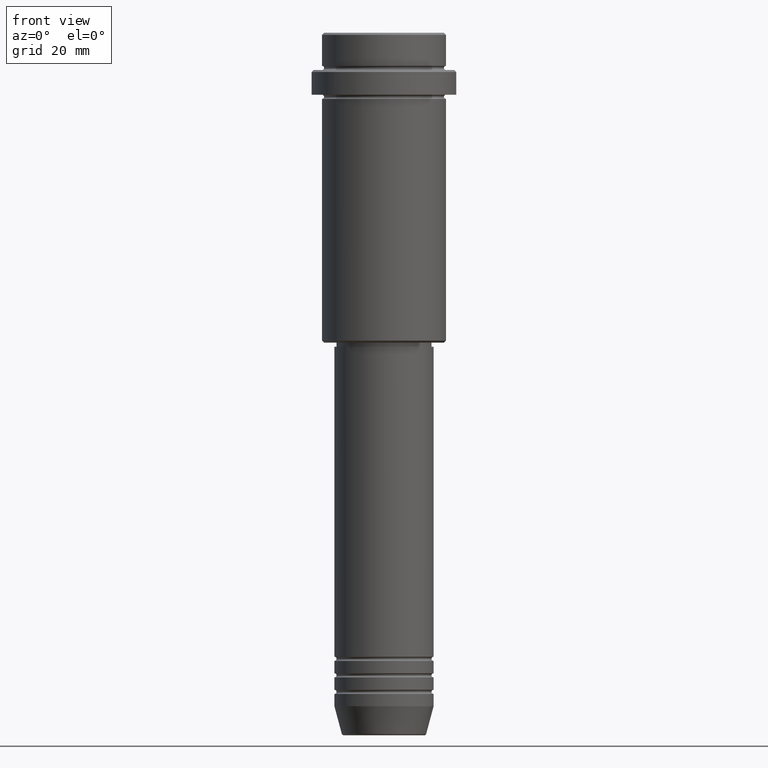
[diagram: clean part render]
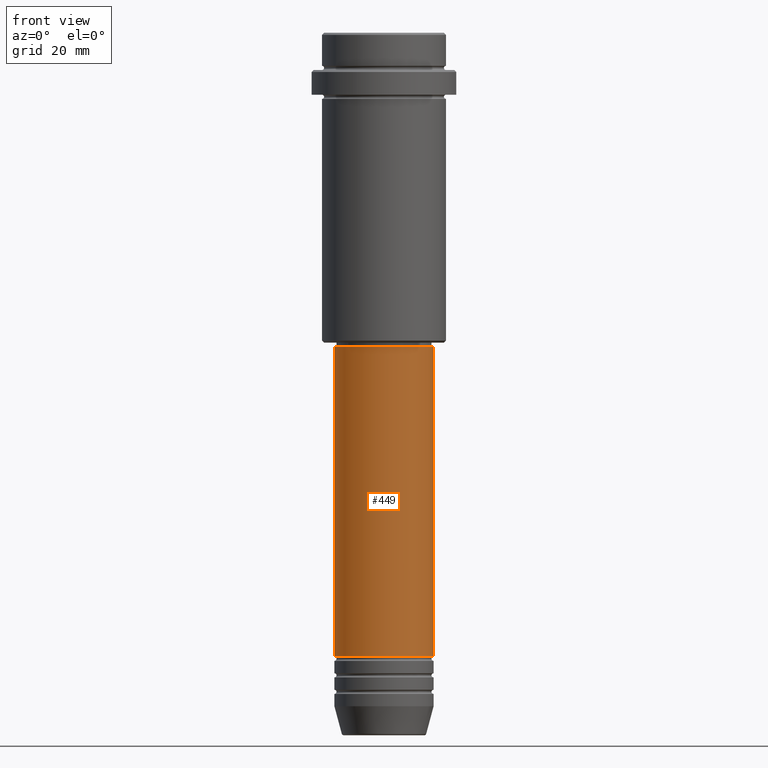
[diagram: same view with one face highlighted and labeled with its STEP entity id]
A machine part, front view. The second image highlights one B-rep face of the part: STEP entity #449.
In plain terms, the highlighted cylindrical surface (partial cylindrical patch) has radius 12 mm, axis along (-0, -0, 1).
Its self-contained STEP definition (entity closure, byte-faithful):
#76 = EDGE_CURVE ( 'NONE', #163, #466, #1384, .T. ) ;
#88 = AXIS2_PLACEMENT_3D ( 'NONE', #200, #421, #1064 ) ;
#126 = EDGE_LOOP ( 'NONE', ( #1308, #884, #132, #290 ) ) ;
#132 = ORIENTED_EDGE ( 'NONE', *, *, #939, .T. ) ;
#161 = VECTOR ( 'NONE', #416, 1000.000000000000000 ) ;
#163 = VERTEX_POINT ( 'NONE', #443 ) ;
#171 = CARTESIAN_POINT ( 'NONE',  ( 11.99999999999999822, 0.000000000000000000, -76.00000000000001421 ) ) ;
#200 = CARTESIAN_POINT ( 'NONE',  ( 0.000000000000000000, 0.000000000000000000, 0.000000000000000000 ) ) ;
#205 = LINE ( 'NONE', #412, #848 ) ;
#273 = EDGE_CURVE ( 'NONE', #163, #315, #1227, .T. ) ;
#290 = ORIENTED_EDGE ( 'NONE', *, *, #615, .F. ) ;
#315 = VERTEX_POINT ( 'NONE', #1352 ) ;
#412 = CARTESIAN_POINT ( 'NONE',  ( 12.00000000000000000, 0.000000000000000000, 0.000000000000000000 ) ) ;
#415 = AXIS2_PLACEMENT_3D ( 'NONE', #605, #1133, #688 ) ;
#416 = DIRECTION ( 'NONE',  ( -0.000000000000000000, -0.000000000000000000, 1.000000000000000000 ) ) ;
#421 = DIRECTION ( 'NONE',  ( -0.000000000000000000, -0.000000000000000000, 1.000000000000000000 ) ) ;
#427 = CARTESIAN_POINT ( 'NONE',  ( -12.00000000000000000, 1.469576158976823947E-15, 0.000000000000000000 ) ) ;
#434 = AXIS2_PLACEMENT_3D ( 'NONE', #993, #886, #1411 ) ;
#443 = CARTESIAN_POINT ( 'NONE',  ( -12.00000000000000000, 1.469576158976823947E-15, -150.9999999999999147 ) ) ;
#449 = ADVANCED_FACE ( 'NONE', ( #972 ), #620, .T. ) ;
#466 = VERTEX_POINT ( 'NONE', #1051 ) ;
#546 = CIRCLE ( 'NONE', #434, 11.99999999999999822 ) ;
#605 = CARTESIAN_POINT ( 'NONE',  ( 0.000000000000000000, 0.000000000000000000, -150.9999999999999147 ) ) ;
#615 = EDGE_CURVE ( 'NONE', #466, #1146, #546, .T. ) ;
#620 = CYLINDRICAL_SURFACE ( 'NONE', #88, 12.00000000000000000 ) ;
#688 = DIRECTION ( 'NONE',  ( 1.000000000000000000, 0.000000000000000000, 0.000000000000000000 ) ) ;
#848 = VECTOR ( 'NONE', #1069, 1000.000000000000000 ) ;
#884 = ORIENTED_EDGE ( 'NONE', *, *, #273, .T. ) ;
#886 = DIRECTION ( 'NONE',  ( -0.000000000000000000, -0.000000000000000000, 1.000000000000000000 ) ) ;
#939 = EDGE_CURVE ( 'NONE', #315, #1146, #205, .T. ) ;
#972 = FACE_OUTER_BOUND ( 'NONE', #126, .T. ) ;
#993 = CARTESIAN_POINT ( 'NONE',  ( 0.000000000000000000, 0.000000000000000000, -76.00000000000001421 ) ) ;
#1051 = CARTESIAN_POINT ( 'NONE',  ( -11.99999999999999822, 1.469576158976823750E-15, -76.00000000000001421 ) ) ;
#1064 = DIRECTION ( 'NONE',  ( 1.000000000000000000, 0.000000000000000000, 0.000000000000000000 ) ) ;
#1069 = DIRECTION ( 'NONE',  ( -0.000000000000000000, -0.000000000000000000, 1.000000000000000000 ) ) ;
#1133 = DIRECTION ( 'NONE',  ( -0.000000000000000000, -0.000000000000000000, 1.000000000000000000 ) ) ;
#1146 = VERTEX_POINT ( 'NONE', #171 ) ;
#1227 = CIRCLE ( 'NONE', #415, 12.00000000000000000 ) ;
#1308 = ORIENTED_EDGE ( 'NONE', *, *, #76, .F. ) ;
#1352 = CARTESIAN_POINT ( 'NONE',  ( 12.00000000000000000, 0.000000000000000000, -150.9999999999999147 ) ) ;
#1384 = LINE ( 'NONE', #427, #161 ) ;
#1411 = DIRECTION ( 'NONE',  ( 1.000000000000000000, 0.000000000000000000, 0.000000000000000000 ) ) ;